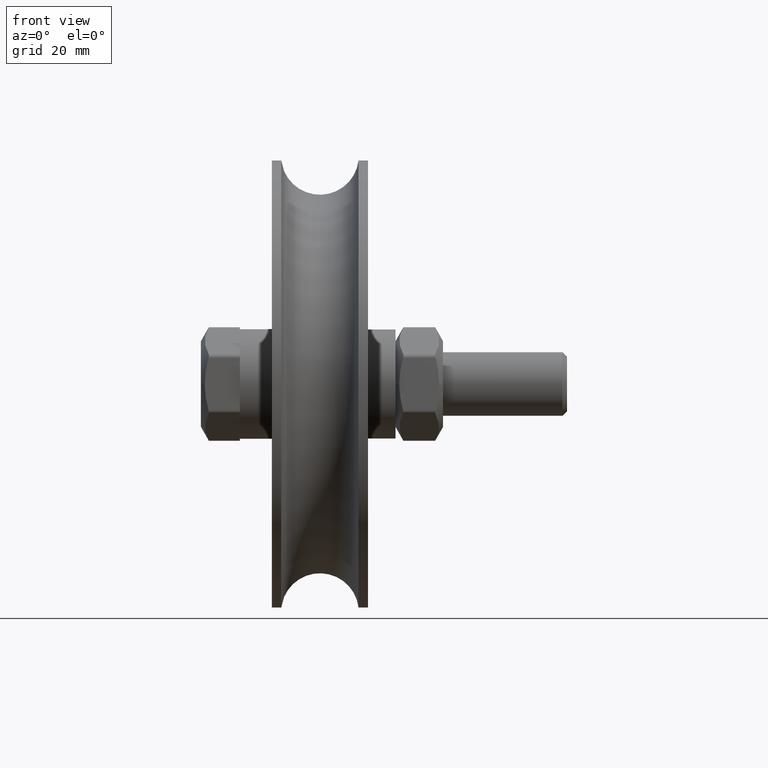
[diagram: clean part render]
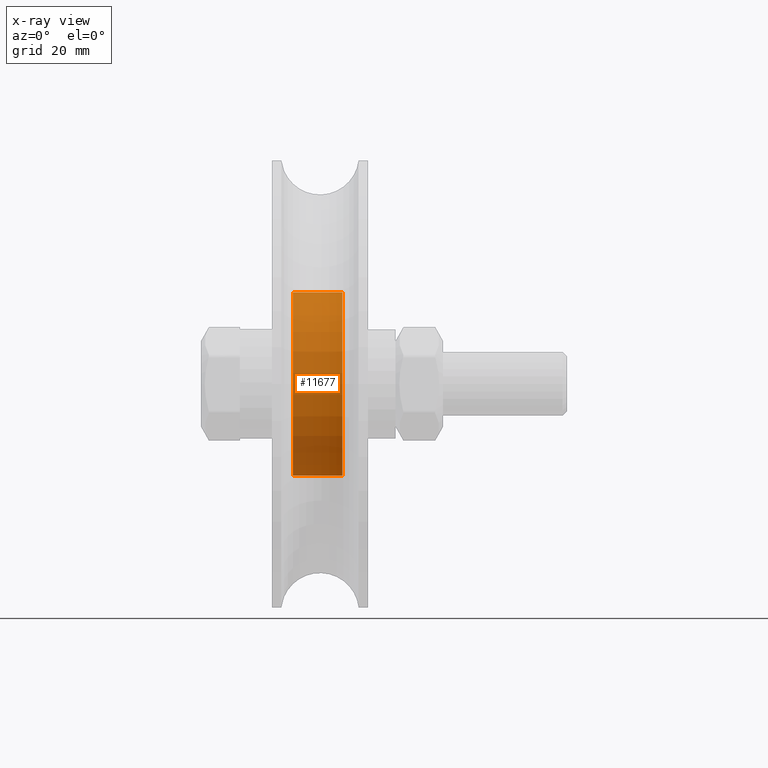
[diagram: x-ray — body ghosted, one internal face saturated and labeled with its STEP entity id]
A machine part, front view, then the same camera in x-ray: the body is ghosted and one INTERNAL B-rep face — a face not visible from any outside direction — is saturated and labeled: STEP entity #11677.
In plain terms, the highlighted cylindrical surface (bore or boss wall) has radius 20 mm, axis along (1, 0, 0).
Its self-contained STEP definition (entity closure, byte-faithful):
#122 = CARTESIAN_POINT ( 'NONE',  ( -20.63749999999999574, 0.000000000000000000, 0.000000000000000000 ) ) ;
#817 = FACE_OUTER_BOUND ( 'NONE', #11487, .T. ) ;
#1328 = CARTESIAN_POINT ( 'NONE',  ( 5.399999999999998579, 0.000000000000000000, 0.000000000000000000 ) ) ;
#1474 = AXIS2_PLACEMENT_3D ( 'NONE', #1328, #3353, #3464 ) ;
#1680 = AXIS2_PLACEMENT_3D ( 'NONE', #122, #11698, #2218 ) ;
#1850 = EDGE_LOOP ( 'NONE', ( #2596 ) ) ;
#2218 = DIRECTION ( 'NONE',  ( 0.000000000000000000, 0.000000000000000000, -1.000000000000000000 ) ) ;
#2596 = ORIENTED_EDGE ( 'NONE', *, *, #5144, .F. ) ;
#3050 = ORIENTED_EDGE ( 'NONE', *, *, #6774, .T. ) ;
#3353 = DIRECTION ( 'NONE',  ( 1.000000000000000000, 0.000000000000000000, 0.000000000000000000 ) ) ;
#3464 = DIRECTION ( 'NONE',  ( 0.000000000000000000, 0.000000000000000000, -1.000000000000000000 ) ) ;
#3625 = VERTEX_POINT ( 'NONE', #9954 ) ;
#4547 = CARTESIAN_POINT ( 'NONE',  ( -5.399999999999998579, 0.000000000000000000, 0.000000000000000000 ) ) ;
#5144 = EDGE_CURVE ( 'NONE', #10078, #10078, #7228, .T. ) ;
#5411 = FACE_OUTER_BOUND ( 'NONE', #1850, .T. ) ;
#5720 = DIRECTION ( 'NONE',  ( 1.000000000000000000, 0.000000000000000000, 0.000000000000000000 ) ) ;
#6774 = EDGE_CURVE ( 'NONE', #3625, #3625, #13651, .T. ) ;
#7107 = CYLINDRICAL_SURFACE ( 'NONE', #1680, 20.00000000000000355 ) ;
#7228 = CIRCLE ( 'NONE', #1474, 20.00000000000000355 ) ;
#8796 = CARTESIAN_POINT ( 'NONE',  ( 5.399999999999998579, 0.000000000000000000, -20.00000000000000355 ) ) ;
#9259 = AXIS2_PLACEMENT_3D ( 'NONE', #4547, #5720, #13085 ) ;
#9954 = CARTESIAN_POINT ( 'NONE',  ( -5.399999999999998579, 0.000000000000000000, -20.00000000000000355 ) ) ;
#10078 = VERTEX_POINT ( 'NONE', #8796 ) ;
#11487 = EDGE_LOOP ( 'NONE', ( #3050 ) ) ;
#11677 = ADVANCED_FACE ( 'NONE', ( #817, #5411 ), #7107, .T. ) ;
#11698 = DIRECTION ( 'NONE',  ( 1.000000000000000000, 0.000000000000000000, 0.000000000000000000 ) ) ;
#13085 = DIRECTION ( 'NONE',  ( 0.000000000000000000, 0.000000000000000000, -1.000000000000000000 ) ) ;
#13651 = CIRCLE ( 'NONE', #9259, 20.00000000000000355 ) ;